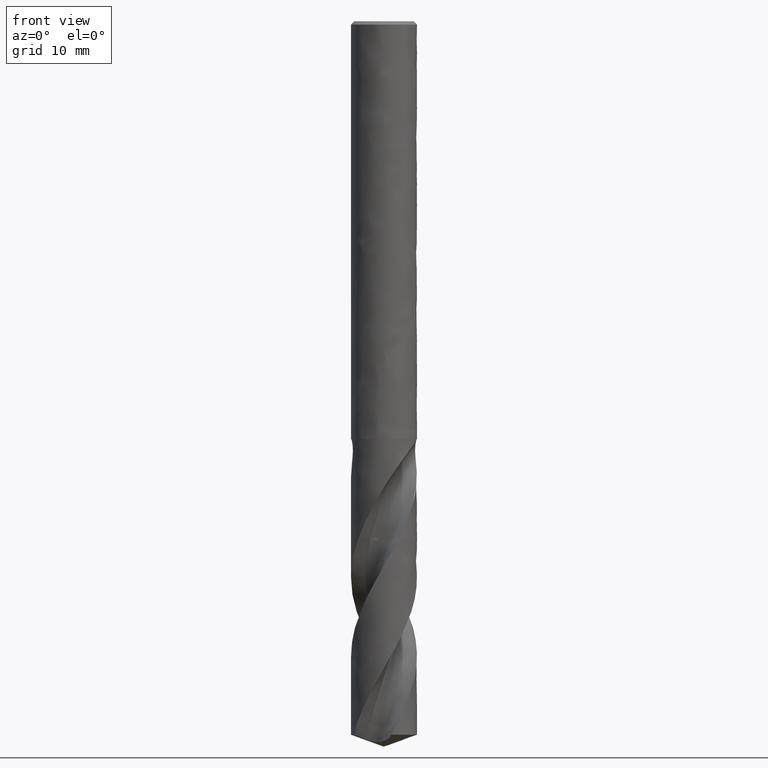
[diagram: clean part render]
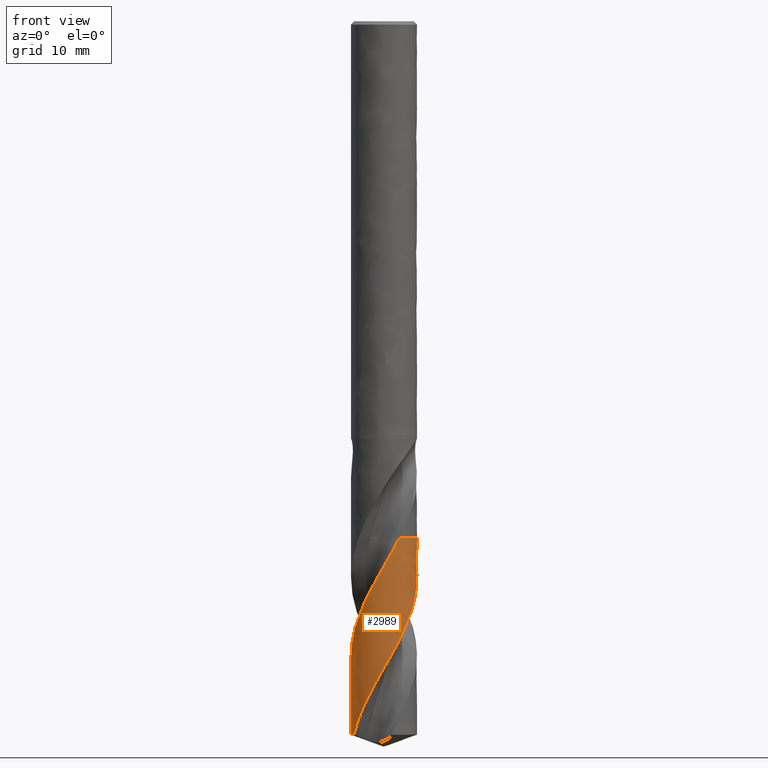
[diagram: same view with one face highlighted and labeled with its STEP entity id]
A machine part, front view. The second image highlights one B-rep face of the part: STEP entity #2989.
In plain terms, the highlighted face is a freeform B-spline surface patch.
Its self-contained STEP definition (entity closure, byte-faithful):
#1802 = VERTEX_POINT('', #1803);
#1803 = CARTESIAN_POINT('', (1.40658153903245, -2.64981666800801, -47.));
#1864 = EDGE_CURVE('', #1865, #1802, #1867, .T.);
#1865 = VERTEX_POINT('', #1866);
#1866 = CARTESIAN_POINT('', (2.31685021363724, 1.90583448587992, -47.));
#1867 = CIRCLE('', #1868, 3.);
#1868 = AXIS2_PLACEMENT_3D('', #1869, #1870, #1871);
#1869 = CARTESIAN_POINT('', (1.76221774462768E-31, 2.87791997799628E-15, -47.));
#1870 = DIRECTION('', (3.74939945665464E-33, 6.12323399573677E-17, -1.));
#1871 = DIRECTION('', (-1., 6.12323399573677E-17, 0.));
#2772 = EDGE_CURVE('', #1865, #2773, #2775, .T.);
#2773 = VERTEX_POINT('', #2774);
#2774 = CARTESIAN_POINT('', (-2.73960696946748, -1.22251938751301, -64.9080892972014));
#2775 = B_SPLINE_CURVE_WITH_KNOTS('', 3, (#2776, #2777, #2778, #2779, #2780, #2781, #2782, #2783, #2784, #2785, #2786, #2787, #2788, #2789, #2790, #2791, #2792, #2793, #2794, #2795, #2796, #2797, #2798, #2799, #2800, #2801, #2802, #2803, #2804, #2805, #2806, #2807, #2808, #2809, #2810, #2811, #2812, #2813, #2814, #2815, #2816, #2817, #2818, #2819, #2820, #2821, #2822, #2823, #2824, #2825, #2826, #2827, #2828, #2829, #2830, #2831, #2832, #2833, #2834, #2835, #2836, #2837, #2838, #2839, #2840, #2841, #2842, #2843, #2844, #2845, #2846, #2847, #2848, #2849, #2850, #2851, #2852, #2853, #2854, #2855, #2856, #2857, #2858, #2859, #2860, #2861, #2862, #2863, #2864, #2865, #2866, #2867, #2868, #2869, #2870, #2871, #2872, #2873, #2874, #2875, #2876, #2877, #2878, #2879, #2880, #2881, #2882, #2883, #2884), .UNSPECIFIED., .F., .U., (4, 3, 3, 3, 3, 3, 3, 3, 3, 3, 3, 3, 3, 3, 3, 3, 3, 3, 3, 3, 3, 3, 3, 3, 3, 3, 3, 3, 3, 3, 3, 3, 3, 3, 3, 3, 4), (8.57791301176538, 9.02703272717674, 9.69153853136525, 10.3557941472813, 11.0198004653725, 11.6835531928488, 12.3470474040293, 12.6422773608444, 12.7298239969358, 13.3966191664571, 14.0631167114407, 14.7293304807262, 15.3952717481001, 16.0609495751219, 16.7263710625211, 17.3915415378291, 18.0564646903581, 18.721142661612, 19.385576095964, 20.0497641543529, 20.7137044917541, 21.3773931972958, 22.0408246938994, 22.1721225465871, 22.211040137572, 22.2499641245237, 22.9167308576813, 23.5832043361797, 24.2493980593359, 24.9153230406043, 25.5809881355052, 26.2464002859818, 26.9115646949869, 27.5764849800643, 28.2411631882141, 28.9056000491793, 29.1998929821725), .UNSPECIFIED.);
#2776 = CARTESIAN_POINT('', (2.31685021363724, 1.90583448587992, -47.));
#2777 = CARTESIAN_POINT('', (2.36420092974579, 1.84827202830832, -47.1298327031359));
#2778 = CARTESIAN_POINT('', (2.40941712073913, 1.78892778667398, -47.2597263854114));
#2779 = CARTESIAN_POINT('', (2.45234188836633, 1.72801020325804, -47.3895669414644));
#2780 = CARTESIAN_POINT('', (2.51585225376098, 1.63787813742353, -47.5816756380004));
#2781 = CARTESIAN_POINT('', (2.57440511235107, 1.54421196873478, -47.7738610536622));
#2782 = CARTESIAN_POINT('', (2.62760049406995, 1.44765867647156, -47.9659829425917));
#2783 = CARTESIAN_POINT('', (2.68077584758053, 1.35114173678982, -48.1580324970988));
#2784 = CARTESIAN_POINT('', (2.72863806187453, 1.25166751745143, -48.3501626362111));
#2785 = CARTESIAN_POINT('', (2.77086637753834, 1.14991283053439, -48.542227527067));
#2786 = CARTESIAN_POINT('', (2.81307884474413, 1.04819633256374, -48.734220335191));
#2787 = CARTESIAN_POINT('', (2.84969270579517, 0.944126015243678, -48.9262925200851));
#2788 = CARTESIAN_POINT('', (2.88046295196186, 0.838411105827729, -49.1183001412785));
#2789 = CARTESIAN_POINT('', (2.91122144666559, 0.732736569986791, -49.3102344328524));
#2790 = CARTESIAN_POINT('', (2.93616360581084, 0.625340504772509, -49.5022482605867));
#2791 = CARTESIAN_POINT('', (2.95512437911217, 0.516952516172648, -49.6941974669062));
#2792 = CARTESIAN_POINT('', (2.97407776763197, 0.408606742180969, -49.8860719134608));
#2793 = CARTESIAN_POINT('', (2.98706840720966, 0.29919000237422, -50.0780256818384));
#2794 = CARTESIAN_POINT('', (2.99401249751204, 0.189444357906679, -50.2699150094447));
#2795 = CARTESIAN_POINT('', (2.99710235639181, 0.140611675826227, -50.3552985394707));
#2796 = CARTESIAN_POINT('', (2.9989972225009, 0.0917023741308067, -50.4406898781721));
#2797 = CARTESIAN_POINT('', (2.9996949310973, 0.0427822433866514, -50.5260764068372));
#2798 = CARTESIAN_POINT('', (2.99990182758316, 0.0282756095409373, -50.5513966806766));
#2799 = CARTESIAN_POINT('', (3.00000348751042, 0.0137676093677389, -50.5767172503031));
#2800 = CARTESIAN_POINT('', (2.99999990872143, -0.000740048251266479, -50.6020377826157));
#2801 = CARTESIAN_POINT('', (2.99997265102976, -0.111236995402058, -50.7948905224756));
#2802 = CARTESIAN_POINT('', (2.99383131481453, -0.221760783843555, -50.9878233497285));
#2803 = CARTESIAN_POINT('', (2.98162227885674, -0.331554801239726, -51.1806910985335));
#2804 = CARTESIAN_POINT('', (2.96941869241157, -0.44129981199163, -51.3734727606702));
#2805 = CARTESIAN_POINT('', (2.95114370360719, -0.550397999613018, -51.5663344079684));
#2806 = CARTESIAN_POINT('', (2.92692650176861, -0.658104287514209, -51.7591310543213));
#2807 = CARTESIAN_POINT('', (2.90271961092579, -0.765764717141398, -51.9518456133456));
#2808 = CARTESIAN_POINT('', (2.87255753953906, -0.872114759185039, -52.1446400751063));
#2809 = CARTESIAN_POINT('', (2.83665026757843, -0.976429853828766, -52.3373696052296));
#2810 = CARTESIAN_POINT('', (2.80075768279586, -1.08070228039204, -52.5300203030504));
#2811 = CARTESIAN_POINT('', (2.75909798245809, -1.1830188396159, -52.7227508170065));
#2812 = CARTESIAN_POINT('', (2.71195897465683, -1.2826841075567, -52.9154164762829));
#2813 = CARTESIAN_POINT('', (2.66483861462139, -1.38230994881747, -53.1080059187643));
#2814 = CARTESIAN_POINT('', (2.61220848421796, -1.47936023728554, -53.300675079986));
#2815 = CARTESIAN_POINT('', (2.55443035952539, -1.57317689352946, -53.493279475705));
#2816 = CARTESIAN_POINT('', (2.49667448406824, -1.66695742279831, -53.6858097032061));
#2817 = CARTESIAN_POINT('', (2.43373207782195, -1.75757587226773, -53.8784195387862));
#2818 = CARTESIAN_POINT('', (2.36603417725305, -1.84441922351468, -54.0709647125096));
#2819 = CARTESIAN_POINT('', (2.29836181386909, -1.93122981547805, -54.2634372538223));
#2820 = CARTESIAN_POINT('', (2.22588788831718, -2.01433189543839, -54.4559892773602));
#2821 = CARTESIAN_POINT('', (2.14910720193352, -2.09316464584071, -54.64847675868));
#2822 = CARTESIAN_POINT('', (2.07235506403996, -2.17196808475729, -54.8408926695671));
#2823 = CARTESIAN_POINT('', (1.99124317058201, -2.24656309968569, -55.0333879206408));
#2824 = CARTESIAN_POINT('', (1.90632387098218, -2.3164475601497, -55.2258187657773));
#2825 = CARTESIAN_POINT('', (1.82143588420713, -2.38630625167926, -55.4181786546839));
#2826 = CARTESIAN_POINT('', (1.73268123168857, -2.45150896651009, -55.6106177253442));
#2827 = CARTESIAN_POINT('', (1.64066294656221, -2.51161802346173, -55.8029925428644));
#2828 = CARTESIAN_POINT('', (1.54867851522269, -2.57170496612164, -55.9952965851462));
#2829 = CARTESIAN_POINT('', (1.45336564244973, -2.6267459233793, -56.1876796349069));
#2830 = CARTESIAN_POINT('', (1.3553706131284, -2.67637263867869, -56.3799985999672));
#2831 = CARTESIAN_POINT('', (1.257411773474, -2.72598102678016, -56.5722465414324));
#2832 = CARTESIAN_POINT('', (1.15670118489578, -2.77021543562346, -56.764573301527));
#2833 = CARTESIAN_POINT('', (1.05392047029477, -2.80878116667954, -56.9568361594281));
#2834 = CARTESIAN_POINT('', (0.951178089626182, -2.84733251394645, -57.1490273094077));
#2835 = CARTESIAN_POINT('', (0.846292018984377, -2.88024760926493, -57.3412970765299));
#2836 = CARTESIAN_POINT('', (0.739970914849122, -2.9073085569264, -57.5335031357975));
#2837 = CARTESIAN_POINT('', (0.63369010616759, -2.934359248551, -57.7256363494111));
#2838 = CARTESIAN_POINT('', (0.525897582396318, -2.95558003729337, -57.9178479686035));
#2839 = CARTESIAN_POINT('', (0.417320434168611, -2.97083214861185, -58.1099960832649));
#2840 = CARTESIAN_POINT('', (0.30878536442252, -2.98607834905778, -58.3020697319724));
#2841 = CARTESIAN_POINT('', (0.199386761403353, -2.99537168088428, -58.4942215677522));
#2842 = CARTESIAN_POINT('', (0.0898613552001899, -2.99865385412235, -58.6863101078985));
#2843 = CARTESIAN_POINT('', (0.068185491568695, -2.99930341975273, -58.7243258080517));
#2844 = CARTESIAN_POINT('', (0.0465028016590066, -2.99971793827334, -58.7623423591512));
#2845 = CARTESIAN_POINT('', (0.0248189925374319, -2.99989733451153, -58.8003586542994));
#2846 = CARTESIAN_POINT('', (0.0183917616489237, -2.99995050879641, -58.811626946926));
#2847 = CARTESIAN_POINT('', (0.0119643966292125, -2.99998302731777, -58.8228952794512));
#2848 = CARTESIAN_POINT('', (0.00553704564223773, -2.99999489018324, -58.8341636227935));
#2849 = CARTESIAN_POINT('', (-0.00089136165686418, -3.00000675499832, -58.8454338180478));
#2850 = CARTESIAN_POINT('', (-0.00731977121895633, -2.99999795739816, -58.8567040527035));
#2851 = CARTESIAN_POINT('', (-0.0137480350511496, -2.99996849842333, -58.8679742975331));
#2852 = CARTESIAN_POINT('', (-0.123864002374441, -2.99946386706495, -59.0610332546289));
#2853 = CARTESIAN_POINT('', (-0.233979755832918, -2.99288714658015, -59.2541713742938));
#2854 = CARTESIAN_POINT('', (-0.343347225429806, -2.98028734903023, -59.4472453070837));
#2855 = CARTESIAN_POINT('', (-0.452666593466704, -2.96769309307252, -59.6402343228741));
#2856 = CARTESIAN_POINT('', (-0.56131908800331, -2.94907179406475, -59.8333024629585));
#2857 = CARTESIAN_POINT('', (-0.668568531122472, -2.92455400346663, -60.0263064386213));
#2858 = CARTESIAN_POINT('', (-0.775772955789085, -2.90004650432515, -60.2192293999678));
#2859 = CARTESIAN_POINT('', (-0.881654125360562, -2.86962952961053, -60.4122314517422));
#2860 = CARTESIAN_POINT('', (-0.985496503290033, -2.83351312719809, -60.6051693723792));
#2861 = CARTESIAN_POINT('', (-1.08929699130715, -2.79741129410659, -60.7980294620501));
#2862 = CARTESIAN_POINT('', (-1.19113597514901, -2.75558835856335, -60.9909685836359));
#2863 = CARTESIAN_POINT('', (-1.29032694168371, -2.70833092209304, -61.1838436331089));
#2864 = CARTESIAN_POINT('', (-1.38947919758179, -2.66109192848619, -61.3766434104455));
#2865 = CARTESIAN_POINT('', (-1.48605739387377, -2.60838845748758, -61.5695221351114));
#2866 = CARTESIAN_POINT('', (-1.57941203543017, -2.55057986001975, -61.7623368738281));
#2867 = CARTESIAN_POINT('', (-1.67273120338842, -2.49279322909714, -61.9550783453517));
#2868 = CARTESIAN_POINT('', (-1.7628966745439, -2.42986363993929, -62.1478986526468));
#2869 = CARTESIAN_POINT('', (-1.84930349507697, -2.36221857225281, -62.3406550866508));
#2870 = CARTESIAN_POINT('', (-1.93567814524338, -2.29459868969196, -62.533339754964));
#2871 = CARTESIAN_POINT('', (-2.01835917796659, -2.22221814633481, -62.7261031228106));
#2872 = CARTESIAN_POINT('', (-2.09679315398774, -2.14556716729869, -62.9188027567756));
#2873 = CARTESIAN_POINT('', (-2.17519834372682, -2.06894432016173, -63.1114316674864));
#2874 = CARTESIAN_POINT('', (-2.24941601868563, -1.98799905528018, -63.3041391117217));
#2875 = CARTESIAN_POINT('', (-2.31895059091934, -1.9032782657496, -63.496782987328));
#2876 = CARTESIAN_POINT('', (-2.38845984776416, -1.81858832044034, -63.6893567272526));
#2877 = CARTESIAN_POINT('', (-2.45333942077041, -1.73006469446593, -63.8820088224055));
#2878 = CARTESIAN_POINT('', (-2.51315724667715, -1.63830420052996, -64.0745975250558));
#2879 = CARTESIAN_POINT('', (-2.57295335250388, -1.54657702517821, -64.267116298016));
#2880 = CARTESIAN_POINT('', (-2.62773441527269, -1.45154934967432, -64.45971323829));
#2881 = CARTESIAN_POINT('', (-2.67713677211743, -1.35386066616054, -64.6522470149727));
#2882 = CARTESIAN_POINT('', (-2.69901810553938, -1.31059231234021, -64.7375242371874));
#2883 = CARTESIAN_POINT('', (-2.71985050420837, -1.2667926730484, -64.8228091348442));
#2884 = CARTESIAN_POINT('', (-2.73960696946748, -1.22251938751301, -64.9080892972014));
#2989 = ADVANCED_FACE('', (#2990), #3087, .T.);
#2990 = FACE_OUTER_BOUND('', #2991, .T.);
#2991 = EDGE_LOOP('', (#2992, #2993, #3008, #3071, #3079, #3086));
#2992 = ORIENTED_EDGE('', *, *, #1864, .T.);
#2993 = ORIENTED_EDGE('', *, *, #2994, .T.);
#2994 = EDGE_CURVE('', #1802, #2995, #2997, .T.);
#2995 = VERTEX_POINT('', #2996);
#2996 = CARTESIAN_POINT('', (0.593386869208928, -2.94072984537009, -48.5051185620261));
#2997 = B_SPLINE_CURVE_WITH_KNOTS('', 3, (#2998, #2999, #3000, #3001, #3002, #3003, #3004, #3005, #3006, #3007), .UNSPECIFIED., .F., .U., (4, 3, 3, 4), (3.64430300471417, 4.03886257404479, 4.70292972205427, 5.38091494043813), .UNSPECIFIED.);
#2998 = CARTESIAN_POINT('', (1.40658153903245, -2.64981666800801, -47.));
#2999 = CARTESIAN_POINT('', (1.3485882161126, -2.68060081182862, -47.1139586926253));
#3000 = CARTESIAN_POINT('', (1.28958303102001, -2.70948049499765, -47.2279447712039));
#3001 = CARTESIAN_POINT('', (1.22970852909939, -2.73638757003831, -47.3419119856624));
#3002 = CARTESIAN_POINT('', (1.12893619250045, -2.78167377261058, -47.5337255645359));
#3003 = CARTESIAN_POINT('', (1.02562975687249, -2.82139728869202, -47.7256179137768));
#3004 = CARTESIAN_POINT('', (0.920508221288273, -2.8552871334665, -47.9174493350426));
#3005 = CARTESIAN_POINT('', (0.813183461324545, -2.88988726973178, -48.1133013184295));
#3006 = CARTESIAN_POINT('', (0.703883436484889, -2.91843360751015, -48.3092431952109));
#3007 = CARTESIAN_POINT('', (0.593386869208938, -2.94072984537009, -48.5051185620261));
#3008 = ORIENTED_EDGE('', *, *, #3009, .T.);
#3009 = EDGE_CURVE('', #2995, #3010, #3012, .T.);
#3010 = VERTEX_POINT('', #3011);
#3011 = CARTESIAN_POINT('', (-3., 3.72128242420802E-15, -57.7731539705803));
#3012 = B_SPLINE_CURVE_WITH_KNOTS('', 3, (#3013, #3014, #3015, #3016, #3017, #3018, #3019, #3020, #3021, #3022, #3023, #3024, #3025, #3026, #3027, #3028, #3029, #3030, #3031, #3032, #3033, #3034, #3035, #3036, #3037, #3038, #3039, #3040, #3041, #3042, #3043, #3044, #3045, #3046, #3047, #3048, #3049, #3050, #3051, #3052, #3053, #3054, #3055, #3056, #3057, #3058, #3059, #3060, #3061, #3062, #3063, #3064, #3065, #3066, #3067, #3068, #3069, #3070), .UNSPECIFIED., .F., .U., (4, 3, 3, 3, 3, 3, 3, 3, 3, 3, 3, 3, 3, 3, 3, 3, 3, 3, 3, 4), (0., 0.663541547735274, 1.10613591146301, 1.19368231653231, 1.25207859056973, 1.91886174423139, 2.58534474581942, 3.25154176815955, 3.91746437711301, 4.58312190556284, 5.24852169946779, 5.91366931138776, 6.57856863821887, 7.24322201431454, 7.90763026430675, 8.57179271858552, 9.2357071922296, 9.89936992629802, 10.5627754883775, 10.6800059844883), .UNSPECIFIED.);
#3013 = CARTESIAN_POINT('', (0.593386869208928, -2.94072984537009, -48.5051185620261));
#3014 = CARTESIAN_POINT('', (0.485244300194675, -2.96255108833691, -48.6968210365573));
#3015 = CARTESIAN_POINT('', (0.375878387063195, -2.97840163155904, -48.888609268662));
#3016 = CARTESIAN_POINT('', (0.266036643797486, -2.98818080178521, -49.0803381915845));
#3017 = CARTESIAN_POINT('', (0.19277018951537, -2.9947036874113, -49.2082248942917));
#3018 = CARTESIAN_POINT('', (0.119261825816589, -2.99853031759984, -49.336139084269));
#3019 = CARTESIAN_POINT('', (0.0457350149488028, -2.99965136447682, -49.46403779977));
#3020 = CARTESIAN_POINT('', (0.0311912057744841, -2.99987311068969, -49.4893365240031));
#3021 = CARTESIAN_POINT('', (0.016646087947367, -2.9999890760702, -49.5146356442131));
#3022 = CARTESIAN_POINT('', (0.0021013747935778, -2.99999926403724, -49.5399348185076));
#3023 = CARTESIAN_POINT('', (-0.00760041769523961, -3.00000605973963, -49.5568101832225));
#3024 = CARTESIAN_POINT('', (-0.0173021009461837, -2.99996579237879, -49.5736856953067));
#3025 = CARTESIAN_POINT('', (-0.0270031583481981, -2.99987846911157, -49.590561258049));
#3026 = CARTESIAN_POINT('', (-0.137772240023224, -2.99888139036877, -49.7832506227491));
#3027 = CARTESIAN_POINT('', (-0.248504002343165, -2.99173966370118, -49.9760269548253));
#3028 = CARTESIAN_POINT('', (-0.358437768614588, -2.97851009164491, -50.1687431200691));
#3029 = CARTESIAN_POINT('', (-0.468322048260969, -2.96528647487331, -50.361372534236));
#3030 = CARTESIAN_POINT('', (-0.577490995537551, -2.94597068024135, -50.5540887913919));
#3031 = CARTESIAN_POINT('', (-0.68519722681727, -2.92070278535182, -50.7467449913637));
#3032 = CARTESIAN_POINT('', (-0.792857242744245, -2.89544573258965, -50.9393185250483));
#3033 = CARTESIAN_POINT('', (-0.899135678347136, -2.86422298800547, -51.1319787119523));
#3034 = CARTESIAN_POINT('', (-1.00330722164964, -2.82725566919358, -51.3245789988816));
#3035 = CARTESIAN_POINT('', (-1.10743585562497, -2.79030357759948, -51.5170999517773));
#3036 = CARTESIAN_POINT('', (-1.209536321617, -2.74758436165743, -51.7097073527963));
#3037 = CARTESIAN_POINT('', (-1.3089139696106, -2.6993970104745, -51.9022550327507));
#3038 = CARTESIAN_POINT('', (-1.40825205883773, -2.65122884099099, -52.094726066207));
#3039 = CARTESIAN_POINT('', (-1.50494277392567, -2.59756139415562, -52.2872833166575));
#3040 = CARTESIAN_POINT('', (-1.59833027437171, -2.53876748325382, -52.4797810518227));
#3041 = CARTESIAN_POINT('', (-1.69168161630696, -2.4799963366433, -52.6722042541929));
#3042 = CARTESIAN_POINT('', (-1.78180108312729, -2.416059426696, -52.8647134213979));
#3043 = CARTESIAN_POINT('', (-1.86807929972908, -2.34739850258189, -53.0571633015361));
#3044 = CARTESIAN_POINT('', (-1.95432481747505, -2.27876360048987, -53.249540244482));
#3045 = CARTESIAN_POINT('', (-2.03679553498134, -2.20535773324623, -53.4420028812477));
#3046 = CARTESIAN_POINT('', (-2.11493561224542, -2.12768591574416, -53.6344064788875));
#3047 = CARTESIAN_POINT('', (-2.19304652152381, -2.05004309143663, -53.8267382564629));
#3048 = CARTESIAN_POINT('', (-2.26688761183938, -1.96808029116708, -54.0191554416355));
#3049 = CARTESIAN_POINT('', (-2.33596298451716, -1.88235940642738, -54.2115138513526));
#3050 = CARTESIAN_POINT('', (-2.40501280574975, -1.79667023041982, -54.4038011063996));
#3051 = CARTESIAN_POINT('', (-2.46935141478773, -1.7071625197497, -54.5961734717312));
#3052 = CARTESIAN_POINT('', (-2.52854852307369, -1.61444800673847, -54.7884873365415));
#3053 = CARTESIAN_POINT('', (-2.58772379929349, -1.52176768711003, -54.9807302754376));
#3054 = CARTESIAN_POINT('', (-2.64180513807828, -1.42581441438481, -55.173058020985));
#3055 = CARTESIAN_POINT('', (-2.69043272574829, -1.32724215884766, -55.365327547102));
#3056 = CARTESIAN_POINT('', (-2.73904232379731, -1.22870636980213, -55.5575259437208));
#3057 = CARTESIAN_POINT('', (-2.7822382369333, -1.12748054342264, -55.7498088423823));
#3058 = CARTESIAN_POINT('', (-2.81973512794951, -1.02425280483269, -55.942033803191));
#3059 = CARTESIAN_POINT('', (-2.85721801862171, -0.921063608740836, -56.1341869923006));
#3060 = CARTESIAN_POINT('', (-2.88903398466002, -0.815797408938586, -56.3264243837628));
#3061 = CARTESIAN_POINT('', (-2.91497525303405, -0.709168015493684, -56.5186041132271));
#3062 = CARTESIAN_POINT('', (-2.94090668513526, -0.602579053217742, -56.7107109729988));
#3063 = CARTESIAN_POINT('', (-2.96098717338102, -0.494548700166677, -56.9029017467523));
#3064 = CARTESIAN_POINT('', (-2.97508864121033, -0.385807694248993, -57.095035121933));
#3065 = CARTESIAN_POINT('', (-2.98918464466393, -0.277108825910133, -57.287094044655));
#3066 = CARTESIAN_POINT('', (-2.99731677339604, -0.167618989352046, -57.4792366111648));
#3067 = CARTESIAN_POINT('', (-2.9994377927238, -0.0580769109149129, -57.6713220229413));
#3068 = CARTESIAN_POINT('', (-2.99981259836648, -0.0387197138484006, -57.7052654647895));
#3069 = CARTESIAN_POINT('', (-3., -0.0193593988454431, -57.7392097151254));
#3070 = CARTESIAN_POINT('', (-3., 3.38199278927347E-15, -57.7731539705803));
#3071 = ORIENTED_EDGE('', *, *, #3072, .T.);
#3072 = EDGE_CURVE('', #3010, #3073, #3075, .T.);
#3073 = VERTEX_POINT('', #3074);
#3074 = CARTESIAN_POINT('', (-3., 4.15817120970152E-15, -64.9080892972014));
#3075 = LINE('', #3076, #3077);
#3076 = CARTESIAN_POINT('', (-3., 3.72128242420802E-15, -57.7731539705803));
#3077 = VECTOR('', #3078, 7.13493532662113);
#3078 = DIRECTION('', (0., 4.36888785493497E-16, -7.13493532662113));
#3079 = ORIENTED_EDGE('', *, *, #3080, .F.);
#3080 = EDGE_CURVE('', #2773, #3073, #3081, .T.);
#3081 = CIRCLE('', #3082, 3.);
#3082 = AXIS2_PLACEMENT_3D('', #3083, #3084, #3085);
#3083 = CARTESIAN_POINT('', (2.43366354743418E-31, 3.97447418982941E-15, -64.9080892972014));
#3084 = DIRECTION('', (3.74939945665464E-33, 6.12323399573677E-17, -1.));
#3085 = DIRECTION('', (-1., 6.12323399573677E-17, 0.));
#3086 = ORIENTED_EDGE('', *, *, #2772, .F.);
#3087 = (
   BOUNDED_SURFACE ()
   B_SPLINE_SURFACE (2, 1, ((#3088, #3089), (#3090, #3091), (#3092, #3093), (#3094, #3095), (#3096, #3097), (#3098, #3099), (#3100, #3101)), .UNSPECIFIED., .F., .F., .U.)
   B_SPLINE_SURFACE_WITH_KNOTS ((3, 2, 2, 3), (2, 2), (7.34476943620345, 9.42477796076938, 14.1371669411541, 18.8495559215388), (0.334471909194089, 1.), .UNSPECIFIED.)
   GEOMETRIC_REPRESENTATION_ITEM ()
   RATIONAL_B_SPLINE_SURFACE (((0.85556554016845, 0.85556554016845), (0.870719417591499, 0.870719417591499), (1., 1.), (0.707106781186547, 0.707106781186548), (1., 1.), (0.707106781186547, 0.707106781186548), (1., 1.)))
   REPRESENTATION_ITEM ('')
   SURFACE ()
);
#3088 = CARTESIAN_POINT('', (2.31685021363723, 1.90583448587991, -47.));
#3089 = CARTESIAN_POINT('', (2.31685021363723, 1.90583448587991, -64.9080892972014));
#3090 = CARTESIAN_POINT('', (3., 1.07535537543918, -47.));
#3091 = CARTESIAN_POINT('', (3., 1.07535537543918, -64.9080892972014));
#3092 = CARTESIAN_POINT('', (3., 3.06161699786838E-15, -47.));
#3093 = CARTESIAN_POINT('', (3., 4.15817120970152E-15, -64.9080892972014));
#3094 = CARTESIAN_POINT('', (3., -3., -47.));
#3095 = CARTESIAN_POINT('', (3., -3., -64.9080892972014));
#3096 = CARTESIAN_POINT('', (3.67394039744206E-16, -3., -47.));
#3097 = CARTESIAN_POINT('', (3.67394039744206E-16, -3., -64.9080892972014));
#3098 = CARTESIAN_POINT('', (-3., -3., -47.));
#3099 = CARTESIAN_POINT('', (-3., -3., -64.9080892972014));
#3100 = CARTESIAN_POINT('', (-3., 3.06161699786838E-15, -47.));
#3101 = CARTESIAN_POINT('', (-3., 4.15817120970152E-15, -64.9080892972014));